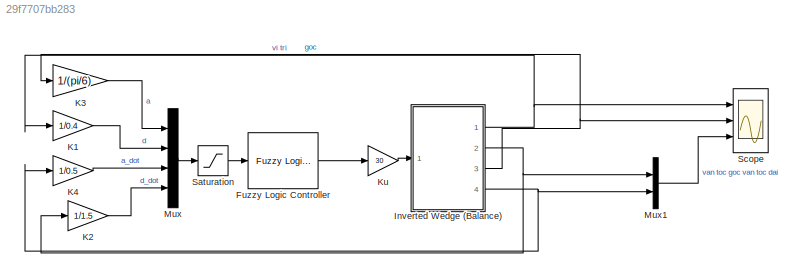
MODEL slx_29f7707bb283
KIND model
CONFIG AbsTol = auto
CONFIG EnableMultiTasking = off
CONFIG FixedStep = 0.001
CONFIG MaxStep = auto
CONFIG MinStep = auto
CONFIG RelTol = 1e-3
CONFIG SampleTimeConstraint = Unconstrained
CONFIG Solver = ode5
CONFIG SolverName = ode5
CONFIG StartTime = 0.0
CONFIG StopTime = 12
BLOCK [Reference] Fuzzy Logic Controller  REF=fuzblock/Fuzzy Logic   (lib defined in mdl_858b3b3e7478)
Controller
  Ports = [1, 1]
  SourceBlock = fuzblock/Fuzzy Logic \nController
  SourceProductBaseCode = FL
  SourceProductName = Fuzzy Logic Toolbox
  SourceType = Fuzzy Inference System
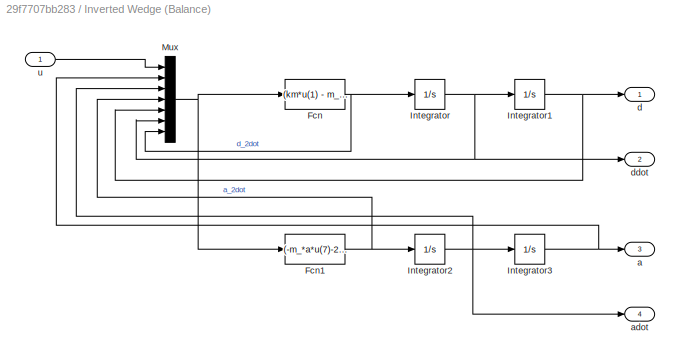
BLOCK [SubSystem] Inverted Wedge (Balance) 
  Ports = [1, 4]
  RequestExecContextInheritance = off
BLOCK [Fcn] Inverted Wedge (Balance) /Fcn
  Expr = (km*u(1) - m_*a*u(4)-b*u(6)+m_*u(5)*u(3)^2+m_*g*sin(u(2)))/m_
BLOCK [Fcn] Inverted Wedge (Balance) /Fcn1
  Expr = (-m_*a*u(7)-2*u(3)*m_*u(5)*u(6)+m_*g*a*sin(u(2))+m_*g*u(5)*cos(u(2))+M*g*c*sin(u(2)))/(J + m_*a^2+m_*u(5)^2)
BLOCK [Integrator] Inverted Wedge (Balance) /Integrator
  InitialCondition = ddot0
  Ports = [1, 1]
BLOCK [Integrator] Inverted Wedge (Balance) /Integrator1
  InitialCondition = d0
  Ports = [1, 1]
BLOCK [Integrator] Inverted Wedge (Balance) /Integrator2
  InitialCondition = adot0
  Ports = [1, 1]
BLOCK [Integrator] Inverted Wedge (Balance) /Integrator3
  InitialCondition = a0
  Ports = [1, 1]
BLOCK [Mux] Inverted Wedge (Balance) /Mux
  DisplayOption = bar
  Inputs = 7
  Ports = [7, 1]
BLOCK [Outport] Inverted Wedge (Balance) /a
  IconDisplay = Port number
  Port = 3
BLOCK [Outport] Inverted Wedge (Balance) /adot
  IconDisplay = Port number
  Port = 4
BLOCK [Outport] Inverted Wedge (Balance) /d
  IconDisplay = Port number
BLOCK [Outport] Inverted Wedge (Balance) /ddot
  IconDisplay = Port number
  Port = 2
BLOCK [Inport] Inverted Wedge (Balance) /u
  IconDisplay = Port number
BLOCK [Gain] K1
  Gain = 1/0.4
  OutDataTypeStr = Inherit: Inherit via internal rule
  ParamDataTypeStr = Inherit: Inherit via internal rule
  SaturateOnIntegerOverflow = off
BLOCK [Gain] K2
  Gain = 1/1.5
  OutDataTypeStr = Inherit: Inherit via internal rule
  ParamDataTypeStr = Inherit: Inherit via internal rule
  SaturateOnIntegerOverflow = off
BLOCK [Gain] K3
  Gain = 1/(pi/6)
  OutDataTypeStr = Inherit: Inherit via internal rule
  ParamDataTypeStr = Inherit: Inherit via internal rule
  SaturateOnIntegerOverflow = off
BLOCK [Gain] K4
  Gain = 1/0.5
  OutDataTypeStr = Inherit: Inherit via internal rule
  ParamDataTypeStr = Inherit: Inherit via internal rule
  SaturateOnIntegerOverflow = off
BLOCK [Gain] Ku
  Gain = 30
  OutDataTypeStr = Inherit: Inherit via internal rule
  ParamDataTypeStr = Inherit: Inherit via internal rule
  SaturateOnIntegerOverflow = off
BLOCK [Mux] Mux
  DisplayOption = bar
  Ports = [4, 1]
BLOCK [Mux] Mux1
  DisplayOption = bar
  Inputs = 2
  Ports = [2, 1]
BLOCK [Saturate] Saturation
  InputPortMap = u0
  LowerLimit = -1
  Ports = [1, 1]
  UpperLimit = 1
BLOCK [Scope] Scope
  Floating = off
  NumInputPorts = 3
  Ports = [3]
  ScopeSpecificationString = Simulink.scopes.TimeScopeBlockCfg('CurrentConfiguration', extmgr.ConfigurationSet(extmgr.Configuration('Core','General UI',true,'FigureColor',[1 1 1]),extmgr.Configuration('Core','Source UI',true),extmgr.Configuration('Sources','WiredSimulink',true),extmgr.Configuration('Visuals','Time Domain',true,'SerializedDisplays',{struct('MinYLimReal','-0.39355','MaxYLimReal','0.04194','YLabelReal','','MinYL...<+3234ch>
LINE Fuzzy Logic Controller:1 -> Ku:1
NET Inverted Wedge (Balance) /Fcn1:1 -> Inverted Wedge (Balance) /Integrator2:1, Inverted Wedge (Balance) /Mux:4
NET Inverted Wedge (Balance) /Fcn:1 -> Inverted Wedge (Balance) /Integrator:1, Inverted Wedge (Balance) /Mux:7
NET Inverted Wedge (Balance) /Integrator1:1 -> Inverted Wedge (Balance) /Mux:5, Inverted Wedge (Balance) /d:1
NET Inverted Wedge (Balance) /Integrator2:1 -> Inverted Wedge (Balance) /Integrator3:1, Inverted Wedge (Balance) /Mux:3, Inverted Wedge (Balance) /adot:1
NET Inverted Wedge (Balance) /Integrator3:1 -> Inverted Wedge (Balance) /Mux:2, Inverted Wedge (Balance) /a:1
NET Inverted Wedge (Balance) /Integrator:1 -> Inverted Wedge (Balance) /Integrator1:1, Inverted Wedge (Balance) /Mux:6, Inverted Wedge (Balance) /ddot:1
NET Inverted Wedge (Balance) /Mux:1 -> Inverted Wedge (Balance) /Fcn1:1, Inverted Wedge (Balance) /Fcn:1
LINE Inverted Wedge (Balance) /u:1 -> Inverted Wedge (Balance) /Mux:1
NET Inverted Wedge (Balance) :1 -> K1:1, Scope:1
NET Inverted Wedge (Balance) :2 -> K2:1, Mux1:1
NET Inverted Wedge (Balance) :3 -> K3:1, Scope:2
NET Inverted Wedge (Balance) :4 -> K4:1, Mux1:2
LINE K1:1 -> Mux:2
LINE K2:1 -> Mux:4
LINE K3:1 -> Mux:1
LINE K4:1 -> Mux:3
LINE Ku:1 -> Inverted Wedge (Balance) :1
LINE Mux1:1 -> Scope:3
LINE Mux:1 -> Saturation:1
LINE Saturation:1 -> Fuzzy Logic Controller:1
note: NET lines group one-source signal fan-out (src -> all destinations, sorted); 1:1 wires keep LINE
